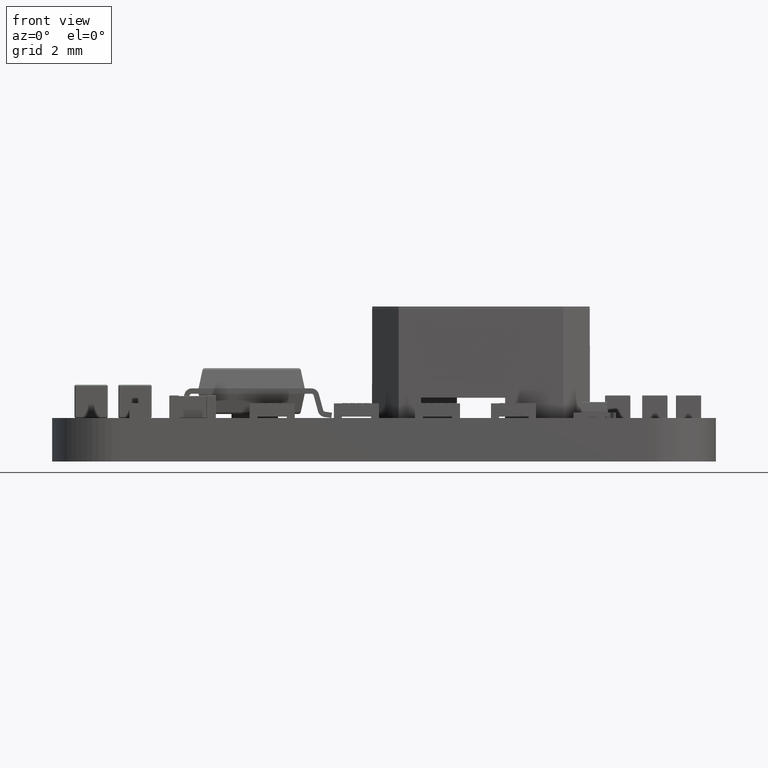
[diagram: clean part render]
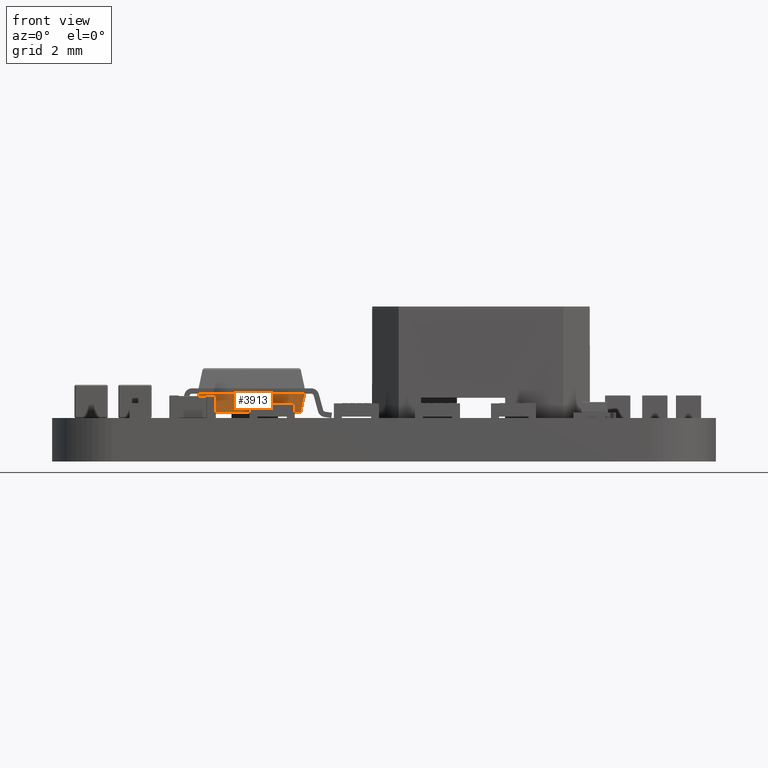
[diagram: same view with one face highlighted and labeled with its STEP entity id]
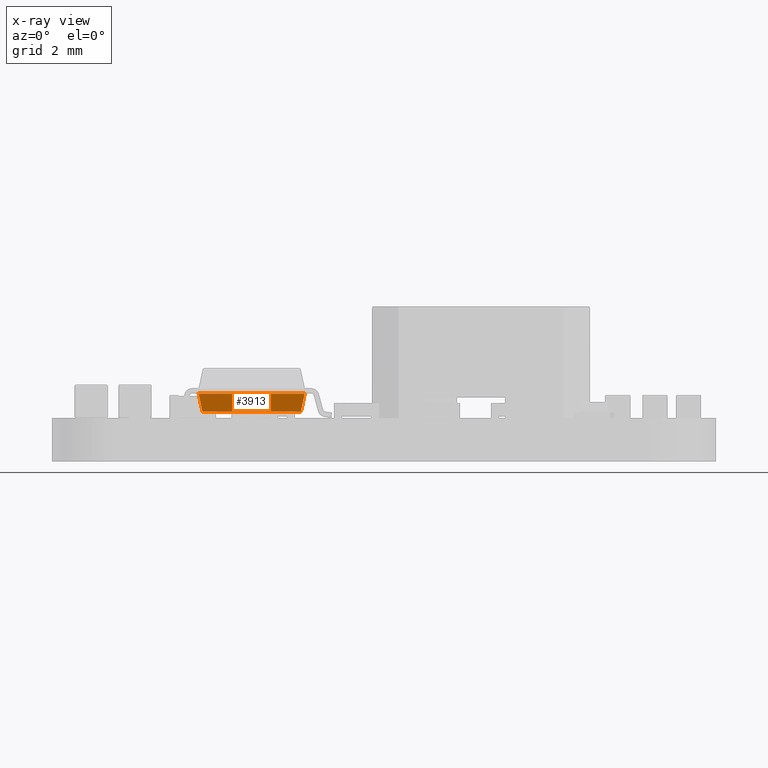
[diagram: x-ray of the same camera — body ghosted, the highlighted face saturated]
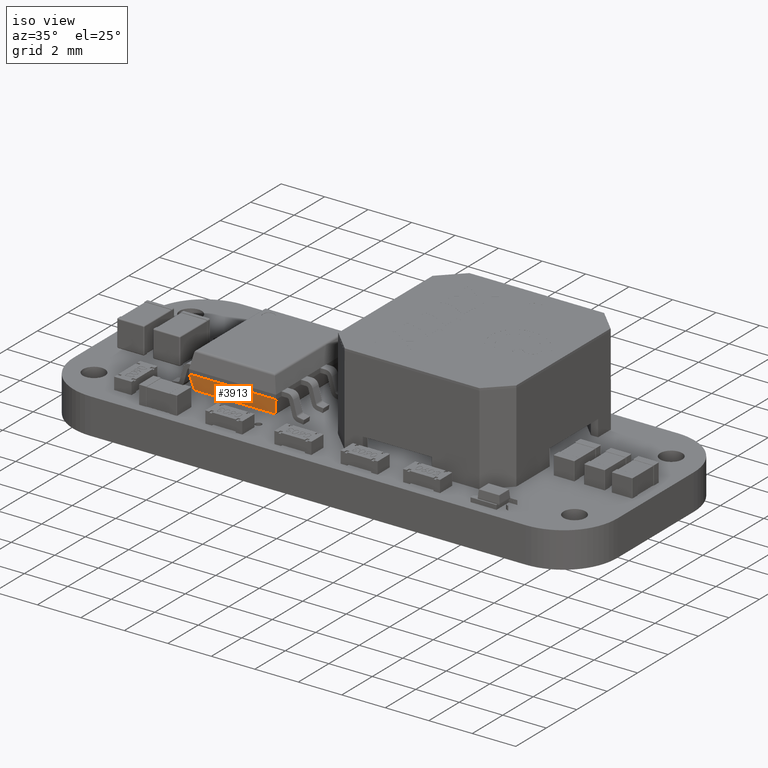
[diagram: same view with one face highlighted and labeled with its STEP entity id]
A machine part, front view. The second image highlights one B-rep face of the part: STEP entity #3913.
The next image is the same camera in x-ray: the body ghosted, the highlighted face saturated — about 0% of this face is hidden behind the body in this view.
A second angle (iso view) of the same face is appended — the face is thin or edge-on in the first view.
In plain terms, the highlighted planar face has unit normal (0, -0.9781, -0.2079).
Its self-contained STEP definition (entity closure, byte-faithful):
#3547 = VERTEX_POINT('',#3548);
#3548 = CARTESIAN_POINT('',(-2.,0.915,2.475));
#3609 = EDGE_CURVE('',#3547,#3610,#3612,.T.);
#3610 = VERTEX_POINT('',#3611);
#3611 = CARTESIAN_POINT('',(2.,0.915,2.475));
#3612 = LINE('',#3613,#3614);
#3613 = CARTESIAN_POINT('',(2.,0.915,2.475));
#3614 = VECTOR('',#3615,1.);
#3615 = DIRECTION('',(1.,0.,-1.084202172486E-16));
#3815 = VERTEX_POINT('',#3816);
#3816 = CARTESIAN_POINT('',(-1.854230587076,0.229208830918,
    2.329230587076));
#3822 = EDGE_CURVE('',#3547,#3815,#3823,.T.);
#3823 = LINE('',#3824,#3825);
#3824 = CARTESIAN_POINT('',(-2.,0.915,2.475));
#3825 = VECTOR('',#3826,1.);
#3826 = DIRECTION('',(0.203558594953,-0.957667894858,-0.203558594953));
#3865 = EDGE_CURVE('',#3866,#3610,#3868,.T.);
#3866 = VERTEX_POINT('',#3867);
#3867 = CARTESIAN_POINT('',(1.854230587076,0.229208830918,2.329230587076
    ));
#3868 = LINE('',#3869,#3870);
#3869 = CARTESIAN_POINT('',(2.,0.915,2.475));
#3870 = VECTOR('',#3871,1.);
#3871 = DIRECTION('',(0.203558594953,0.957667894858,0.203558594953));
#3913 = ADVANCED_FACE('',(#3914),#3925,.T.);
#3914 = FACE_BOUND('',#3915,.T.);
#3915 = EDGE_LOOP('',(#3916,#3917,#3923,#3924));
#3916 = ORIENTED_EDGE('',*,*,#3822,.T.);
#3917 = ORIENTED_EDGE('',*,*,#3918,.T.);
#3918 = EDGE_CURVE('',#3815,#3866,#3919,.T.);
#3919 = LINE('',#3920,#3921);
#3920 = CARTESIAN_POINT('',(-2.,0.229208830918,2.329230587076));
#3921 = VECTOR('',#3922,1.);
#3922 = DIRECTION('',(1.,-0.,-1.084202172486E-16));
#3923 = ORIENTED_EDGE('',*,*,#3865,.T.);
#3924 = ORIENTED_EDGE('',*,*,#3609,.F.);
#3925 = PLANE('',#3926);
#3926 = AXIS2_PLACEMENT_3D('',#3927,#3928,#3929);
#3927 = CARTESIAN_POINT('',(-2.,0.915,2.475));
#3928 = DIRECTION('',(1.060509753727E-16,-0.207911690818,0.978147600734)
  );
#3929 = DIRECTION('',(0.,-0.978147600734,-0.207911690818));